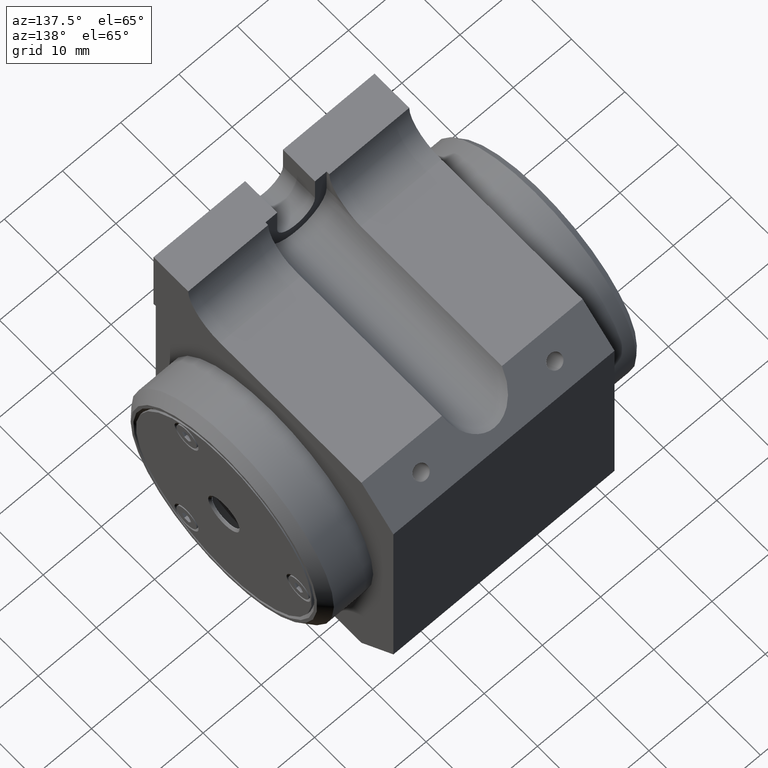
[diagram: clean part render]
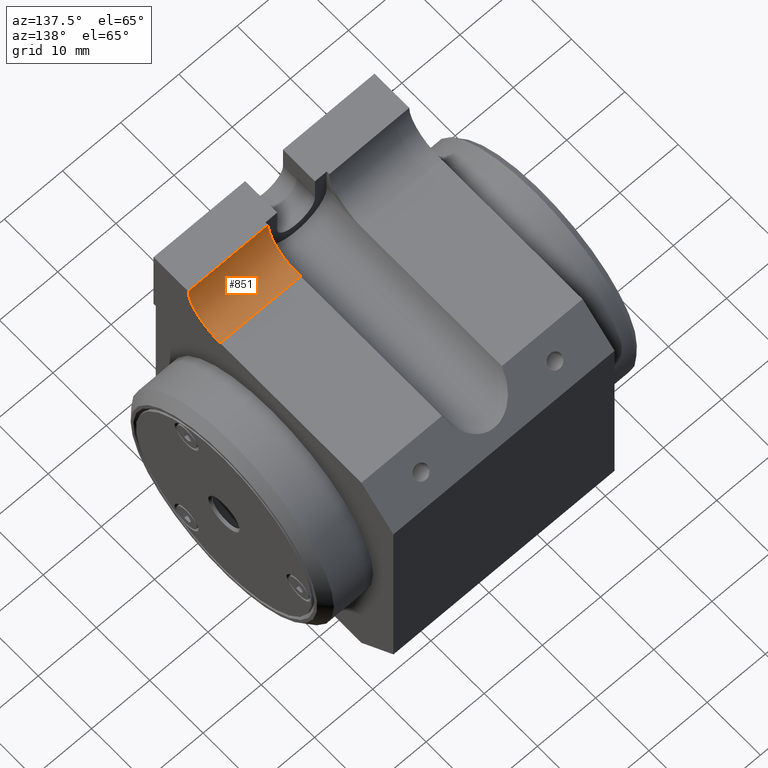
[diagram: same view with one face highlighted and labeled with its STEP entity id]
A machine part, auxiliary view. The second image highlights one B-rep face of the part: STEP entity #851.
In plain terms, the highlighted cylindrical surface (partial cylindrical patch) has radius 6 mm, axis along (-1, 0, 0).
Its self-contained STEP definition (entity closure, byte-faithful):
#8 = VECTOR ( 'NONE', #4574, 1000.000000000000000 ) ;
#417 = CYLINDRICAL_SURFACE ( 'NONE', #977, 5.999999999999998224 ) ;
#610 = VERTEX_POINT ( 'NONE', #1625 ) ;
#636 = ORIENTED_EDGE ( 'NONE', *, *, #2557, .F. ) ;
#774 = LINE ( 'NONE', #6346, #1645 ) ;
#807 = CARTESIAN_POINT ( 'NONE',  ( 5.250000000000000888, -13.01662479035699960, 25.00000000000105871 ) ) ;
#851 = ADVANCED_FACE ( 'NONE', ( #4600 ), #417, .F. ) ;
#953 = LINE ( 'NONE', #6115, #8 ) ;
#977 = AXIS2_PLACEMENT_3D ( 'NONE', #3061, #6017, #1426 ) ;
#1012 = CARTESIAN_POINT ( 'NONE',  ( 5.158223795871332840, -10.28769361951409422, 24.02167419147084360 ) ) ;
#1290 = EDGE_CURVE ( 'NONE', #2561, #610, #5270, .T. ) ;
#1344 = DIRECTION ( 'NONE',  ( 1.000000000000000000, -0.000000000000000000, -0.000000000000000000 ) ) ;
#1426 = DIRECTION ( 'NONE',  ( 0.000000000000000000, 0.000000000000000000, 1.000000000000000000 ) ) ;
#1613 = VERTEX_POINT ( 'NONE', #2438 ) ;
#1625 = CARTESIAN_POINT ( 'NONE',  ( 5.153882032022036874, -9.700000000000001066, 24.00000000000000000 ) ) ;
#1645 = VECTOR ( 'NONE', #1344, 1000.000000000000000 ) ;
#1883 = CARTESIAN_POINT ( 'NONE',  ( 5.173734023537535087, -10.86710466257910568, 24.10732403996881246 ) ) ;
#1985 = EDGE_CURVE ( 'NONE', #1613, #4868, #5487, .T. ) ;
#2100 = ORIENTED_EDGE ( 'NONE', *, *, #2765, .F. ) ;
#2438 = CARTESIAN_POINT ( 'NONE',  ( 19.00000000000000000, -9.700000000000001066, 24.00000000000000000 ) ) ;
#2445 = CARTESIAN_POINT ( 'NONE',  ( 19.00000000000000000, -15.69999999999999929, 30.00000000000000000 ) ) ;
#2557 = EDGE_CURVE ( 'NONE', #610, #1613, #774, .T. ) ;
#2561 = VERTEX_POINT ( 'NONE', #807 ) ;
#2601 = DIRECTION ( 'NONE',  ( -1.000000000000000000, 0.000000000000000000, 0.000000000000000000 ) ) ;
#2765 = EDGE_CURVE ( 'NONE', #4433, #2561, #3990, .T. ) ;
#3061 = CARTESIAN_POINT ( 'NONE',  ( 19.13155896741999840, -9.700000000000001066, 30.00000000000000000 ) ) ;
#3622 = ORIENTED_EDGE ( 'NONE', *, *, #6091, .F. ) ;
#3882 = AXIS2_PLACEMENT_3D ( 'NONE', #5534, #4074, #5502 ) ;
#3990 = CIRCLE ( 'NONE', #3882, 5.999999999999998224 ) ;
#4018 = CARTESIAN_POINT ( 'NONE',  ( 5.221393684448369044, -11.99771907957374673, 24.42648253353140930 ) ) ;
#4074 = DIRECTION ( 'NONE',  ( 1.000000000000000000, -0.000000000000000000, -0.000000000000000000 ) ) ;
#4433 = VERTEX_POINT ( 'NONE', #6488 ) ;
#4489 = CARTESIAN_POINT ( 'NONE',  ( 5.250000000000000888, -13.01662479035699960, 25.00000000000105871 ) ) ;
#4574 = DIRECTION ( 'NONE',  ( -1.000000000000000000, -0.000000000000000000, 0.000000000000000000 ) ) ;
#4600 = FACE_OUTER_BOUND ( 'NONE', #4909, .T. ) ;
#4644 = CARTESIAN_POINT ( 'NONE',  ( 19.00000000000000000, -9.700000000000001066, 30.00000000000000000 ) ) ;
#4868 = VERTEX_POINT ( 'NONE', #2445 ) ;
#4909 = EDGE_LOOP ( 'NONE', ( #3622, #5559, #636, #6575, #2100 ) ) ;
#5270 = B_SPLINE_CURVE_WITH_KNOTS ( 'NONE', 3,
 ( #4489, #6101, #4018, #6621, #1883, #1012, #5973, #6549 ),
 .UNSPECIFIED., .F., .F.,
 ( 4, 2, 2, 4 ),
 ( 1.888053658162355340E-15, 0.001746437524642557903, 0.002619656286962893273, 0.003492875049283227992 ),
 .UNSPECIFIED. ) ;
#5487 = CIRCLE ( 'NONE', #6129, 5.999999999999998224 ) ;
#5502 = DIRECTION ( 'NONE',  ( 0.000000000000000000, 0.000000000000000000, 1.000000000000000000 ) ) ;
#5534 = CARTESIAN_POINT ( 'NONE',  ( 5.250000000000000888, -9.700000000000001066, 30.00000000000000000 ) ) ;
#5559 = ORIENTED_EDGE ( 'NONE', *, *, #1985, .F. ) ;
#5973 = CARTESIAN_POINT ( 'NONE',  ( 5.153882032022075066, -9.995255976049165270, 24.00000000000000000 ) ) ;
#6017 = DIRECTION ( 'NONE',  ( -1.000000000000000000, 0.000000000000000000, 0.000000000000000000 ) ) ;
#6091 = EDGE_CURVE ( 'NONE', #4868, #4433, #953, .T. ) ;
#6101 = CARTESIAN_POINT ( 'NONE',  ( 5.250000000000131450, -12.52433978790710967, 24.67345507139151550 ) ) ;
#6115 = CARTESIAN_POINT ( 'NONE',  ( 19.00000000000000000, -15.69999999999999929, 30.00000000000000000 ) ) ;
#6129 = AXIS2_PLACEMENT_3D ( 'NONE', #4644, #2601, #6259 ) ;
#6259 = DIRECTION ( 'NONE',  ( 0.000000000000000000, 0.000000000000000000, 1.000000000000000000 ) ) ;
#6346 = CARTESIAN_POINT ( 'NONE',  ( 19.13155896741999840, -9.700000000000001066, 24.00000000000000000 ) ) ;
#6488 = CARTESIAN_POINT ( 'NONE',  ( 5.250000000000000888, -15.69999999999999929, 30.00000000000000000 ) ) ;
#6549 = CARTESIAN_POINT ( 'NONE',  ( 5.153882032022036874, -9.700000000000001066, 24.00000000000000000 ) ) ;
#6575 = ORIENTED_EDGE ( 'NONE', *, *, #1290, .F. ) ;
#6621 = CARTESIAN_POINT ( 'NONE',  ( 5.185001327738721244, -11.15608105725670640, 24.17198743703181307 ) ) ;